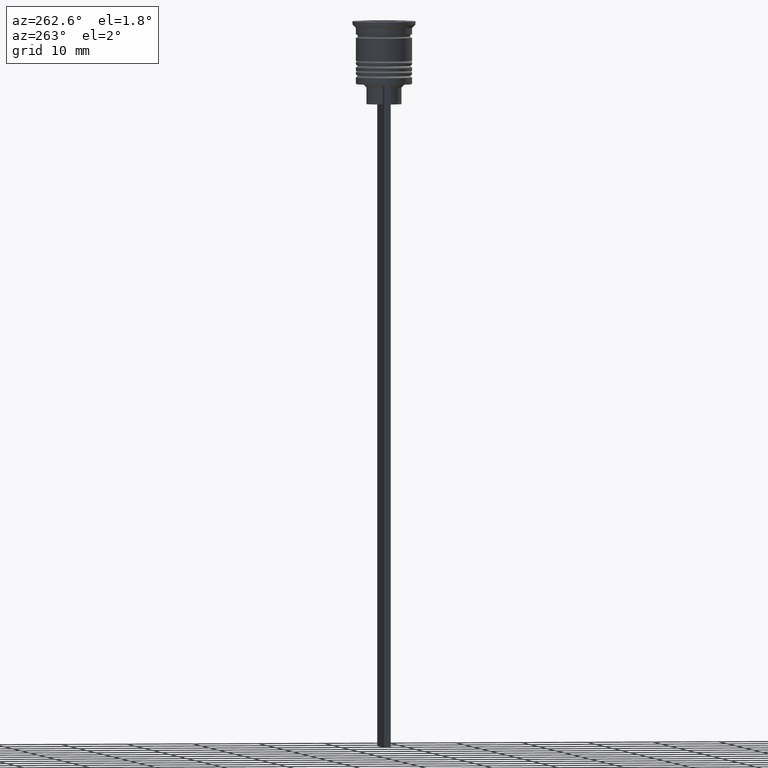
[diagram: clean part render]
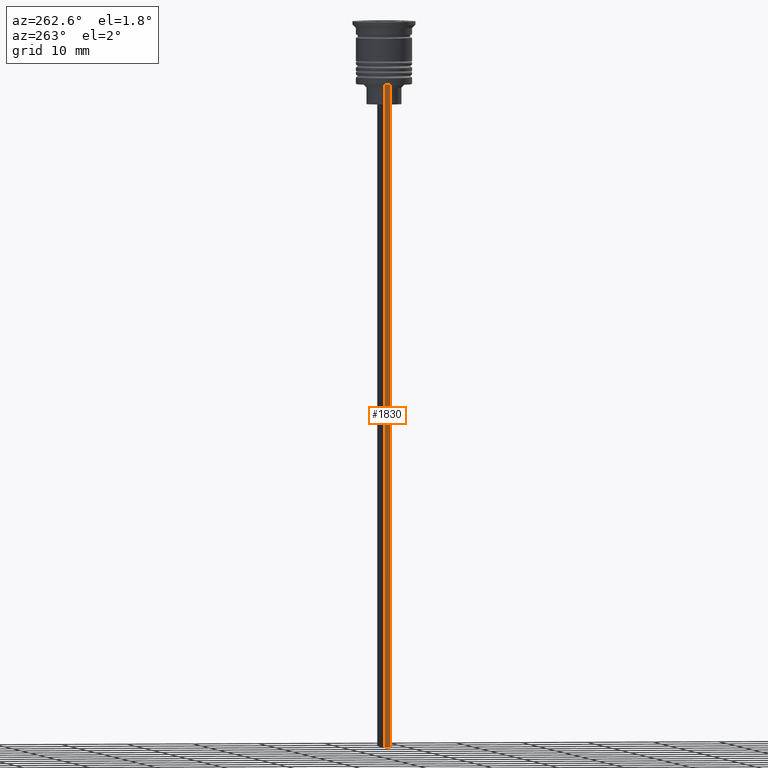
[diagram: same view with one face highlighted and labeled with its STEP entity id]
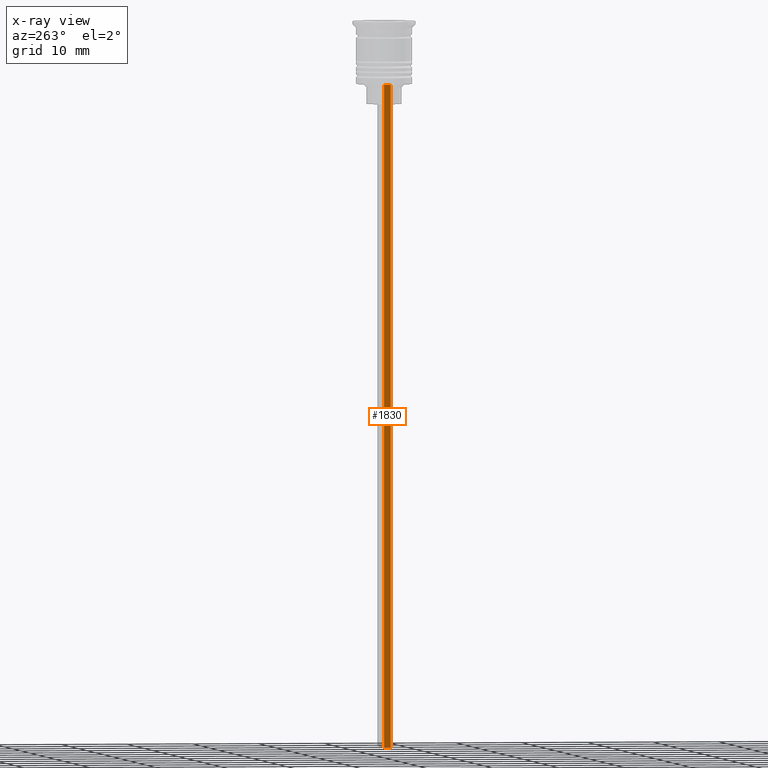
[diagram: x-ray of the same camera — body ghosted, the highlighted face saturated]
A machine part, auxiliary view. The second image highlights one B-rep face of the part: STEP entity #1830.
The next image is the same camera in x-ray: the body ghosted, the highlighted face saturated — about 0% of this face is hidden behind the body in this view.
In plain terms, the highlighted planar face has unit normal (-1, 0, 0).
Its self-contained STEP definition (entity closure, byte-faithful):
#48 = VECTOR ( 'NONE', #2321, 1000.000000000000000 ) ;
#115 = LINE ( 'NONE', #846, #48 ) ;
#292 = LINE ( 'NONE', #303, #702 ) ;
#295 = VERTEX_POINT ( 'NONE', #2374 ) ;
#303 = CARTESIAN_POINT ( 'NONE',  ( -3.999999999999994671, -0.5000000000000004441, -9.500000000000000000 ) ) ;
#437 = EDGE_CURVE ( 'NONE', #295, #2211, #292, .T. ) ;
#446 = DIRECTION ( 'NONE',  ( 0.000000000000000000, -1.000000000000000000, 0.000000000000000000 ) ) ;
#486 = ORIENTED_EDGE ( 'NONE', *, *, #437, .F. ) ;
#492 = EDGE_CURVE ( 'NONE', #647, #805, #115, .T. ) ;
#548 = CARTESIAN_POINT ( 'NONE',  ( -3.999999999999994671, -0.5000000000000004441, -1.437742251701450202 ) ) ;
#587 = EDGE_CURVE ( 'NONE', #295, #805, #2014, .T. ) ;
#609 = ORIENTED_EDGE ( 'NONE', *, *, #587, .T. ) ;
#647 = VERTEX_POINT ( 'NONE', #2188 ) ;
#702 = VECTOR ( 'NONE', #446, 1000.000000000000000 ) ;
#705 = FACE_OUTER_BOUND ( 'NONE', #990, .T. ) ;
#717 = DIRECTION ( 'NONE',  ( 0.000000000000000000, 0.000000000000000000, 1.000000000000000000 ) ) ;
#805 = VERTEX_POINT ( 'NONE', #2340 ) ;
#846 = CARTESIAN_POINT ( 'NONE',  ( -3.999999999999994671, -0.5000000000000004441, -109.5000000000000000 ) ) ;
#863 = EDGE_CURVE ( 'NONE', #2211, #647, #999, .T. ) ;
#878 = PLANE ( 'NONE',  #1848 ) ;
#879 = CARTESIAN_POINT ( 'NONE',  ( -3.999999999999994671, -0.5000000000000004441, -1.437742251701450202 ) ) ;
#916 = VECTOR ( 'NONE', #1432, 1000.000000000000000 ) ;
#990 = EDGE_LOOP ( 'NONE', ( #486, #609, #2024, #1389 ) ) ;
#999 = LINE ( 'NONE', #879, #916 ) ;
#1389 = ORIENTED_EDGE ( 'NONE', *, *, #863, .F. ) ;
#1432 = DIRECTION ( 'NONE',  ( 0.000000000000000000, 0.000000000000000000, -1.000000000000000000 ) ) ;
#1830 = ADVANCED_FACE ( 'NONE', ( #705 ), #878, .T. ) ;
#1831 = DIRECTION ( 'NONE',  ( 0.000000000000000000, 0.000000000000000000, -1.000000000000000000 ) ) ;
#1848 = AXIS2_PLACEMENT_3D ( 'NONE', #548, #2206, #717 ) ;
#1912 = VECTOR ( 'NONE', #1831, 1000.000000000000000 ) ;
#2014 = LINE ( 'NONE', #2378, #1912 ) ;
#2024 = ORIENTED_EDGE ( 'NONE', *, *, #492, .F. ) ;
#2102 = CARTESIAN_POINT ( 'NONE',  ( -3.999999999999994671, -0.5000000000000004441, -9.500000000000000000 ) ) ;
#2188 = CARTESIAN_POINT ( 'NONE',  ( -3.999999999999994671, -0.5000000000000004441, -109.5000000000000000 ) ) ;
#2206 = DIRECTION ( 'NONE',  ( -1.000000000000000000, 0.000000000000000000, 0.000000000000000000 ) ) ;
#2211 = VERTEX_POINT ( 'NONE', #2102 ) ;
#2321 = DIRECTION ( 'NONE',  ( 0.000000000000000000, 1.000000000000000000, 0.000000000000000000 ) ) ;
#2340 = CARTESIAN_POINT ( 'NONE',  ( -3.999999999999994671, 0.4999999999999995559, -109.5000000000000000 ) ) ;
#2374 = CARTESIAN_POINT ( 'NONE',  ( -3.999999999999994671, 0.4999999999999997780, -9.500000000000000000 ) ) ;
#2378 = CARTESIAN_POINT ( 'NONE',  ( -3.999999999999994671, 0.4999999999999995559, -1.437742251701450202 ) ) ;